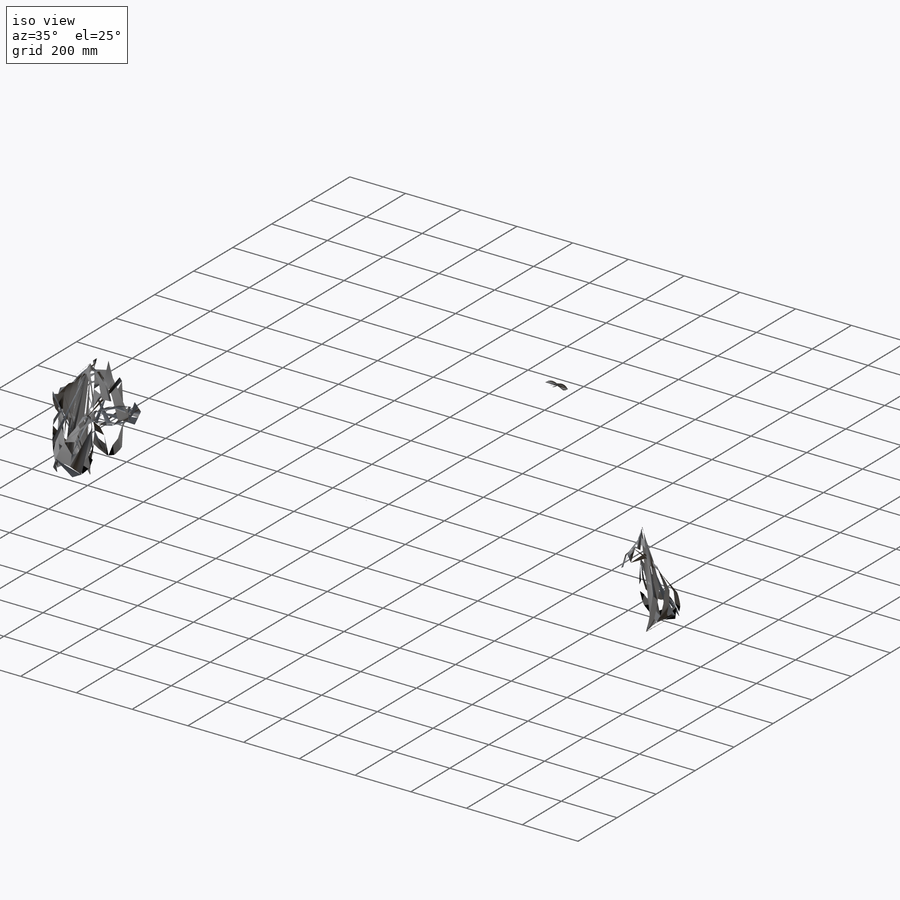
[diagram: iso view]
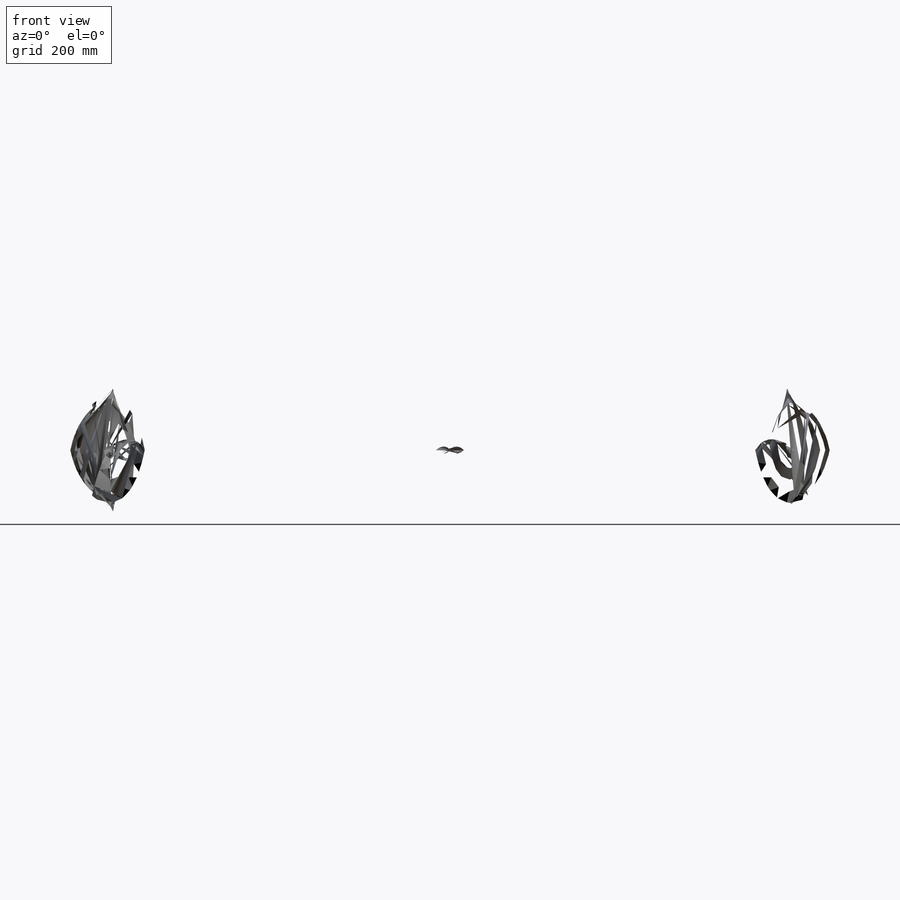
[diagram: front view]
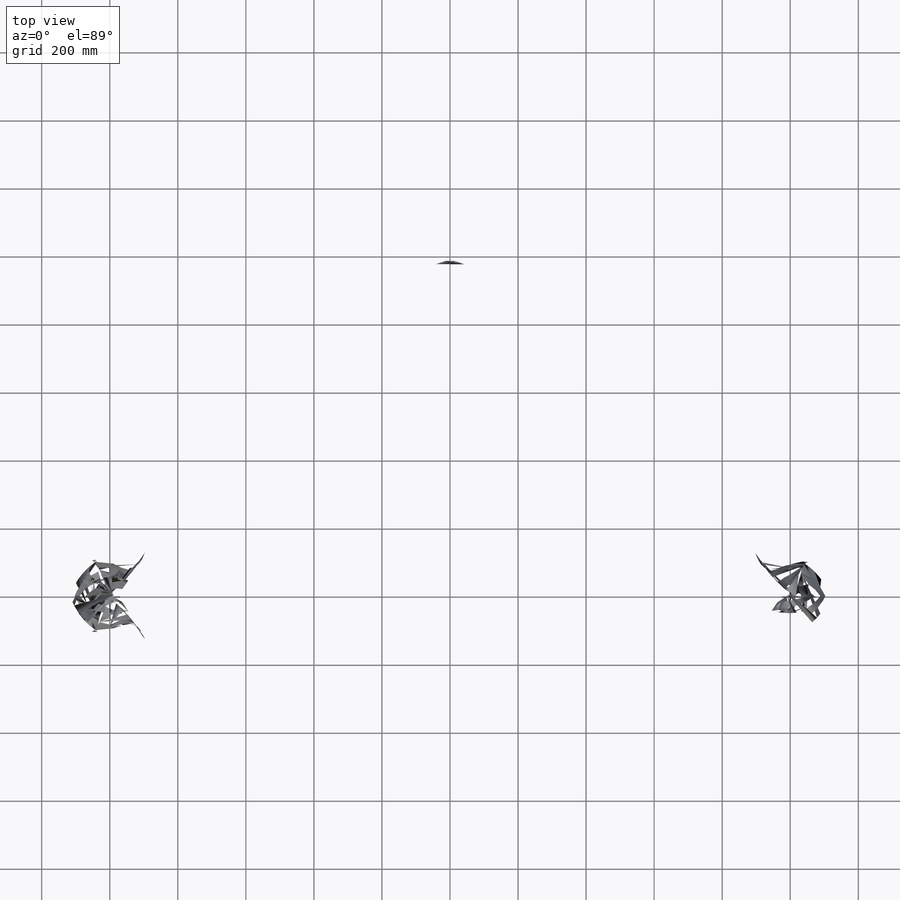
[diagram: top view]
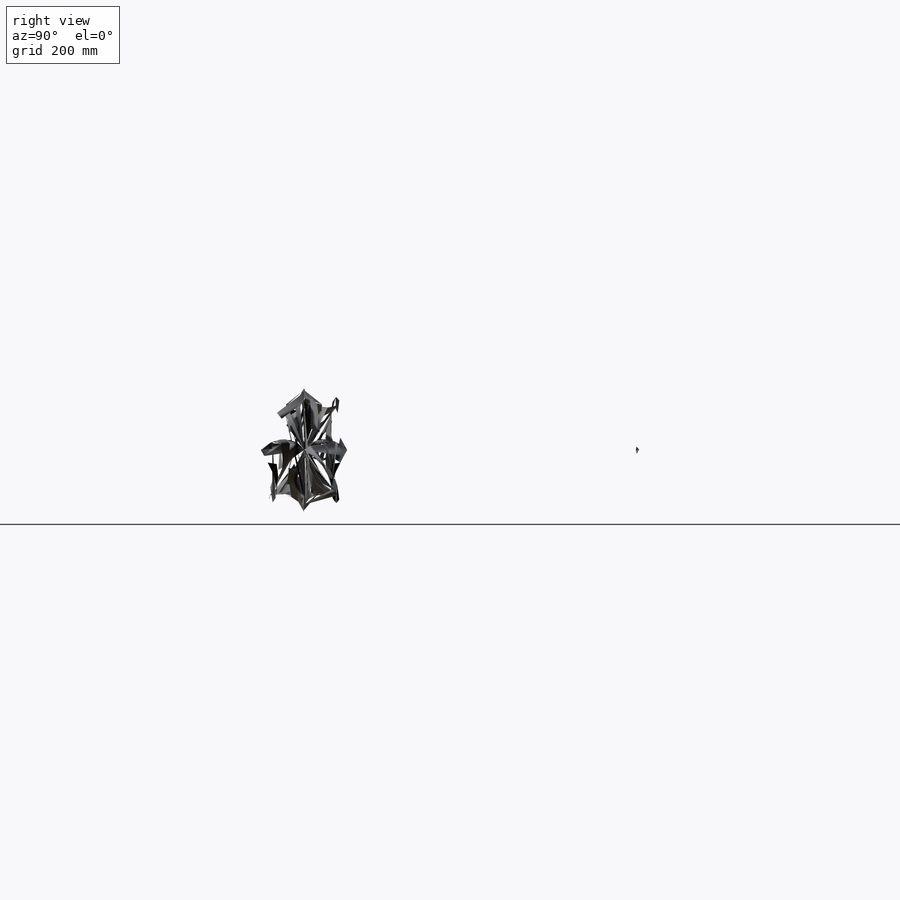
[diagram: right view]
SOLIDWORKS PART (.sldprt)
format: sldprt  version: not decoded by parser v0  size: 468,480 bytes
history: native  units: mm
features: sketch x5, extrude x3, revolve x2, fillet x2, material x1, mirror x1 (+13 scaffold rows collapsed)
feature tree (27):
  scaffold x13  (default folders/planes/origin — collapsed)
  material  "E-Glass Fiber"
  sketch  "Sketch1"  dims[D5=0.5mm D1=1.25mm D2=0.625mm D3=2.0mm D4=1.0mm]
  extrude  "Boss-Extrude1"  Depth=0.3mm
  sketch  "Sketch3"  dims[D1=0.5mm D2=0.2mm]
  revolve  "Revolve1"  Angle=360deg
  sketch  "Sketch4"  dims[c1.D1=4.0mm c1.D2=2.0mm c1.D3=1.4mm c1.D4=0.7mm c1.D5=1.3mm c1.D6=1.3mm c2.D5=0.65mm c2.D1=0.7mm c2.D2=1.3mm]
  extrude  "Boss-Extrude4"  Depth=0.05mm
  sketch  "Sketch5"  dims[c1.D4=~0.500987mm c1.D1=1.15mm c1.D2=0.1mm c1.D3=1.2mm c2.D4=0.4mm]
  revolve  "Revolve3"  Angle=360deg
  fillet  "Fillet3"  Radius=0.3mm
  fillet  "Fillet4"  Radius=0.1mm
  mirror  "Mirror3"
  sketch  "Sketch2"  dims[c1.D1=0.4mm c1.D2=0.3mm c1.D3=1.2mm c2.D1=1.2mm c2.D3=1.4mm c2.D2=0.5mm c2.D4=0.7mm]
  extrude  "Boss-Extrude5"  Depth=1.2mm
decode coverage: 12 of 13 modeling features carry decoded parameters
note: ~ marks probable driven/reference dimensions
note: suppression state not decoded; provenance and decode notes live in map.json
